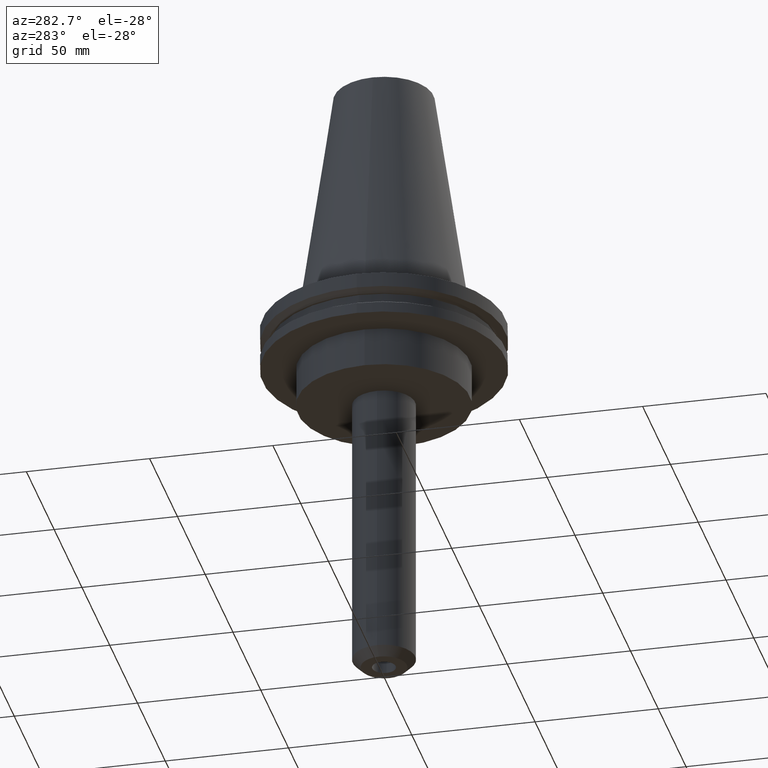
[diagram: clean part render]
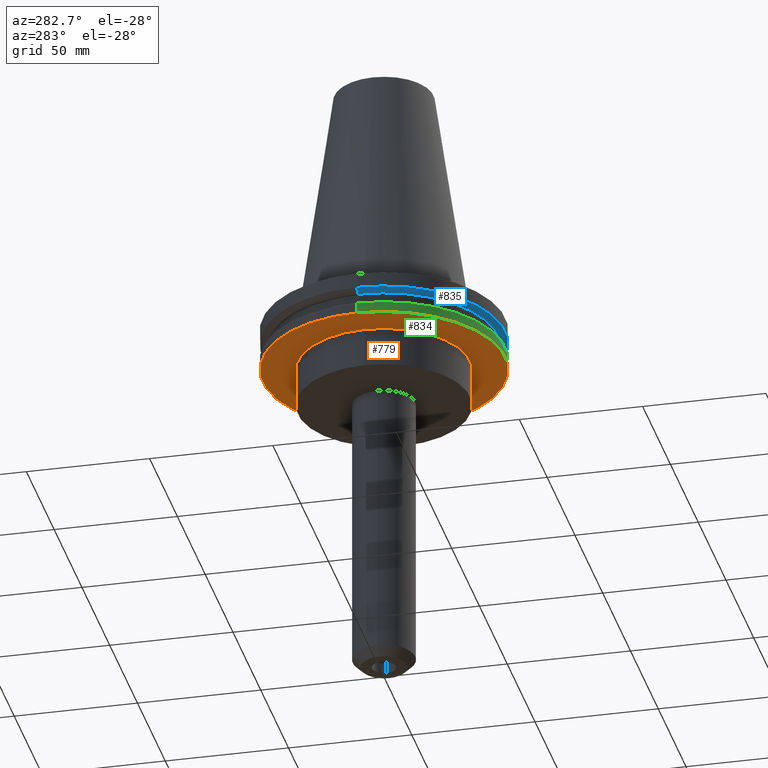
[diagram: same view with three faces highlighted in distinct colors, each labeled with its STEP entity id]
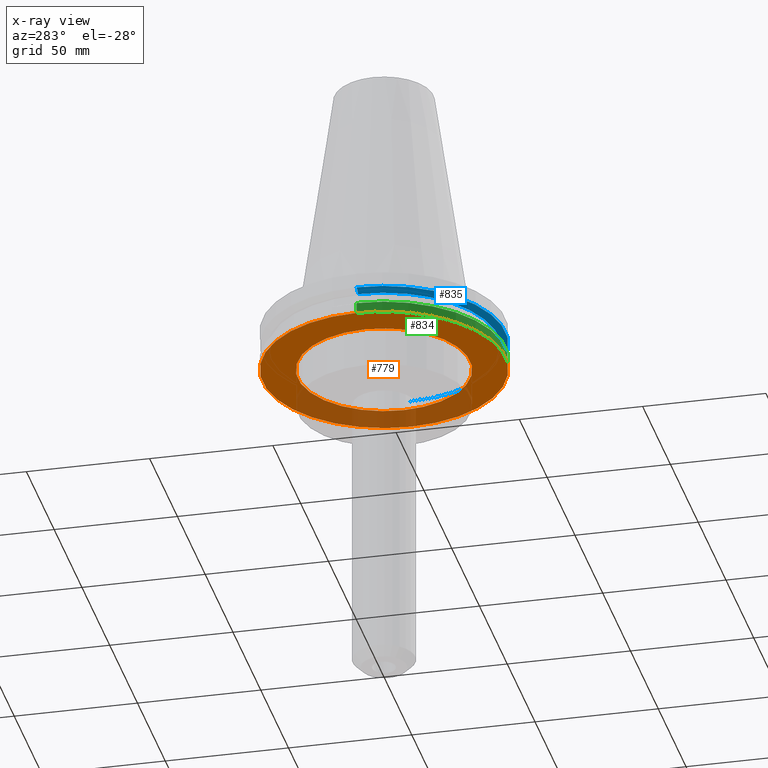
[diagram: x-ray of the same camera — body ghosted, the three highlighted faces saturated]
A machine part, auxiliary view with three faces highlighted in distinct colors.
The next image is the same camera in x-ray (body ghosted, the three faces saturated) — at least one of them is partly hidden behind the body in this view.
Their STEP definitions:

[orange] entity #779 — the highlighted planar face has unit normal (0, -0, 1).
#3 = CARTESIAN_POINT ( 'NONE',  ( -49.21499999999998920, 6.027099222003697037E-15, -19.04999999999999716 ) ) ;
#23 = FACE_OUTER_BOUND ( 'NONE', #534, .T. ) ;
#32 = VERTEX_POINT ( 'NONE', #560 ) ;
#35 = CIRCLE ( 'NONE', #742, 34.92499999999999716 ) ;
#102 = EDGE_CURVE ( 'NONE', #238, #32, #311, .T. ) ;
#111 = DIRECTION ( 'NONE',  ( -0.000000000000000000, -0.000000000000000000, 1.000000000000000000 ) ) ;
#148 = DIRECTION ( 'NONE',  ( 1.000000000000000000, 0.000000000000000000, 0.000000000000000000 ) ) ;
#197 = VERTEX_POINT ( 'NONE', #201 ) ;
#201 = CARTESIAN_POINT ( 'NONE',  ( -34.92499999999999716, 4.277078946022130887E-15, -19.04999999999999716 ) ) ;
#211 = CARTESIAN_POINT ( 'NONE',  ( 0.000000000000000000, 0.000000000000000000, -19.04999999999999716 ) ) ;
#227 = AXIS2_PLACEMENT_3D ( 'NONE', #211, #417, #148 ) ;
#238 = VERTEX_POINT ( 'NONE', #3 ) ;
#242 = CARTESIAN_POINT ( 'NONE',  ( 34.92499999999999716, 0.000000000000000000, -19.04999999999999716 ) ) ;
#263 = DIRECTION ( 'NONE',  ( 1.000000000000000000, 0.000000000000000000, 0.000000000000000000 ) ) ;
#291 = FACE_BOUND ( 'NONE', #821, .T. ) ;
#311 = CIRCLE ( 'NONE', #515, 49.21499999999998920 ) ;
#354 = CIRCLE ( 'NONE', #227, 34.92499999999999716 ) ;
#396 = EDGE_CURVE ( 'NONE', #590, #197, #354, .T. ) ;
#400 = AXIS2_PLACEMENT_3D ( 'NONE', #659, #529, #466 ) ;
#417 = DIRECTION ( 'NONE',  ( -0.000000000000000000, -0.000000000000000000, 1.000000000000000000 ) ) ;
#466 = DIRECTION ( 'NONE',  ( 1.000000000000000000, 0.000000000000000000, 0.000000000000000000 ) ) ;
#486 = ORIENTED_EDGE ( 'NONE', *, *, #696, .T. ) ;
#488 = PLANE ( 'NONE',  #641 ) ;
#515 = AXIS2_PLACEMENT_3D ( 'NONE', #775, #111, #764 ) ;
#529 = DIRECTION ( 'NONE',  ( -0.000000000000000000, -0.000000000000000000, 1.000000000000000000 ) ) ;
#534 = EDGE_LOOP ( 'NONE', ( #608, #636 ) ) ;
#552 = CARTESIAN_POINT ( 'NONE',  ( 0.000000000000000000, 49.21499999999998920, -19.04999999999999716 ) ) ;
#560 = CARTESIAN_POINT ( 'NONE',  ( 49.21499999999998920, 0.000000000000000000, -19.04999999999999716 ) ) ;
#590 = VERTEX_POINT ( 'NONE', #242 ) ;
#608 = ORIENTED_EDGE ( 'NONE', *, *, #675, .F. ) ;
#636 = ORIENTED_EDGE ( 'NONE', *, *, #102, .F. ) ;
#641 = AXIS2_PLACEMENT_3D ( 'NONE', #552, #808, #754 ) ;
#659 = CARTESIAN_POINT ( 'NONE',  ( 0.000000000000000000, 0.000000000000000000, -19.04999999999999716 ) ) ;
#675 = EDGE_CURVE ( 'NONE', #32, #238, #807, .T. ) ;
#696 = EDGE_CURVE ( 'NONE', #197, #590, #35, .T. ) ;
#713 = CARTESIAN_POINT ( 'NONE',  ( 0.000000000000000000, 0.000000000000000000, -19.04999999999999716 ) ) ;
#742 = AXIS2_PLACEMENT_3D ( 'NONE', #713, #854, #263 ) ;
#754 = DIRECTION ( 'NONE',  ( 1.000000000000000000, 0.000000000000000000, 0.000000000000000000 ) ) ;
#764 = DIRECTION ( 'NONE',  ( 1.000000000000000000, 0.000000000000000000, 0.000000000000000000 ) ) ;
#775 = CARTESIAN_POINT ( 'NONE',  ( 0.000000000000000000, 0.000000000000000000, -19.04999999999999716 ) ) ;
#779 = ADVANCED_FACE ( 'NONE', ( #23, #291 ), #488, .F. ) ;
#807 = CIRCLE ( 'NONE', #400, 49.21499999999998920 ) ;
#808 = DIRECTION ( 'NONE',  ( 0.000000000000000000, -0.000000000000000000, 1.000000000000000000 ) ) ;
#821 = EDGE_LOOP ( 'NONE', ( #824, #486 ) ) ;
#824 = ORIENTED_EDGE ( 'NONE', *, *, #396, .T. ) ;
#854 = DIRECTION ( 'NONE',  ( -0.000000000000000000, -0.000000000000000000, 1.000000000000000000 ) ) ;

[blue] entity #835 — the highlighted conical surface has half-angle 60 deg.
#28 = VECTOR ( 'NONE', #33, 1000.000000000000000 ) ;
#33 = DIRECTION ( 'NONE',  ( 0.8660254037844273833, 0.000000000000000000, 0.5000000000000195399 ) ) ;
#57 = CIRCLE ( 'NONE', #787, 49.21500000000000341 ) ;
#67 = ORIENTED_EDGE ( 'NONE', *, *, #298, .F. ) ;
#74 = EDGE_CURVE ( 'NONE', #370, #482, #253, .T. ) ;
#95 = EDGE_LOOP ( 'NONE', ( #278, #673, #447, #67 ) ) ;
#101 = VERTEX_POINT ( 'NONE', #437 ) ;
#141 = CIRCLE ( 'NONE', #267, 46.43919780457007818 ) ;
#165 = VERTEX_POINT ( 'NONE', #431 ) ;
#194 = CONICAL_SURFACE ( 'NONE', #669, 46.43919780457007818, 1.047197551196575205 ) ;
#195 = DIRECTION ( 'NONE',  ( -0.8660254037844273833, 1.060575238724893110E-16, 0.5000000000000195399 ) ) ;
#243 = CARTESIAN_POINT ( 'NONE',  ( 46.43919780457007818, 0.000000000000000000, -9.204999999999991189 ) ) ;
#253 = LINE ( 'NONE', #243, #28 ) ;
#267 = AXIS2_PLACEMENT_3D ( 'NONE', #507, #631, #372 ) ;
#278 = ORIENTED_EDGE ( 'NONE', *, *, #740, .F. ) ;
#298 = EDGE_CURVE ( 'NONE', #101, #482, #57, .T. ) ;
#344 = DIRECTION ( 'NONE',  ( 1.000000000000000000, 0.000000000000000000, 0.000000000000000000 ) ) ;
#345 = CARTESIAN_POINT ( 'NONE',  ( 49.21500000000000341, 0.000000000000000000, -7.602389855251287187 ) ) ;
#347 = FACE_OUTER_BOUND ( 'NONE', #95, .T. ) ;
#370 = VERTEX_POINT ( 'NONE', #745 ) ;
#372 = DIRECTION ( 'NONE',  ( 1.000000000000000000, 0.000000000000000000, 0.000000000000000000 ) ) ;
#387 = DIRECTION ( 'NONE',  ( -0.000000000000000000, -0.000000000000000000, 1.000000000000000000 ) ) ;
#431 = CARTESIAN_POINT ( 'NONE',  ( -46.43919780457007818, 5.857130358318727293E-15, -9.204999999999991189 ) ) ;
#437 = CARTESIAN_POINT ( 'NONE',  ( -49.21500000000000341, 6.027099222003699404E-15, -7.602389855251287187 ) ) ;
#447 = ORIENTED_EDGE ( 'NONE', *, *, #74, .T. ) ;
#463 = DIRECTION ( 'NONE',  ( 1.000000000000000000, 0.000000000000000000, 0.000000000000000000 ) ) ;
#480 = VECTOR ( 'NONE', #195, 1000.000000000000000 ) ;
#482 = VERTEX_POINT ( 'NONE', #345 ) ;
#507 = CARTESIAN_POINT ( 'NONE',  ( 0.000000000000000000, 0.000000000000000000, -9.204999999999991189 ) ) ;
#510 = EDGE_CURVE ( 'NONE', #165, #370, #141, .T. ) ;
#522 = LINE ( 'NONE', #652, #480 ) ;
#606 = CARTESIAN_POINT ( 'NONE',  ( 0.000000000000000000, 0.000000000000000000, -9.204999999999991189 ) ) ;
#631 = DIRECTION ( 'NONE',  ( -0.000000000000000000, -0.000000000000000000, 1.000000000000000000 ) ) ;
#652 = CARTESIAN_POINT ( 'NONE',  ( -46.43919780457007818, 5.687161494633754392E-15, -9.204999999999991189 ) ) ;
#669 = AXIS2_PLACEMENT_3D ( 'NONE', #606, #674, #344 ) ;
#673 = ORIENTED_EDGE ( 'NONE', *, *, #510, .T. ) ;
#674 = DIRECTION ( 'NONE',  ( -0.000000000000000000, -0.000000000000000000, 1.000000000000000000 ) ) ;
#740 = EDGE_CURVE ( 'NONE', #165, #101, #522, .T. ) ;
#745 = CARTESIAN_POINT ( 'NONE',  ( 46.43919780457007818, 0.000000000000000000, -9.204999999999991189 ) ) ;
#787 = AXIS2_PLACEMENT_3D ( 'NONE', #842, #387, #463 ) ;
#835 = ADVANCED_FACE ( 'NONE', ( #347 ), #194, .T. ) ;
#842 = CARTESIAN_POINT ( 'NONE',  ( 0.000000000000000000, 0.000000000000000000, -7.602389855251287187 ) ) ;

[green] entity #834 — the highlighted cylindrical surface (partial cylindrical patch) has radius 49.215 mm, axis along (-0, -0, 1).
#3 = CARTESIAN_POINT ( 'NONE',  ( -49.21499999999998920, 6.027099222003697037E-15, -19.04999999999999716 ) ) ;
#21 = AXIS2_PLACEMENT_3D ( 'NONE', #680, #406, #666 ) ;
#32 = VERTEX_POINT ( 'NONE', #560 ) ;
#38 = DIRECTION ( 'NONE',  ( 1.000000000000000000, 0.000000000000000000, 0.000000000000000000 ) ) ;
#63 = VERTEX_POINT ( 'NONE', #317 ) ;
#90 = LINE ( 'NONE', #607, #765 ) ;
#102 = EDGE_CURVE ( 'NONE', #238, #32, #311, .T. ) ;
#111 = DIRECTION ( 'NONE',  ( -0.000000000000000000, -0.000000000000000000, 1.000000000000000000 ) ) ;
#134 = EDGE_CURVE ( 'NONE', #445, #63, #212, .T. ) ;
#158 = LINE ( 'NONE', #162, #405 ) ;
#162 = CARTESIAN_POINT ( 'NONE',  ( -49.21499999999998920, 6.027099222003697037E-15, 101.5999999999999943 ) ) ;
#212 = CIRCLE ( 'NONE', #692, 49.21499999999998920 ) ;
#238 = VERTEX_POINT ( 'NONE', #3 ) ;
#246 = ORIENTED_EDGE ( 'NONE', *, *, #385, .T. ) ;
#311 = CIRCLE ( 'NONE', #515, 49.21499999999998920 ) ;
#317 = CARTESIAN_POINT ( 'NONE',  ( 49.21499999999998920, 0.000000000000000000, -14.65761014474876944 ) ) ;
#322 = CARTESIAN_POINT ( 'NONE',  ( 0.000000000000000000, 0.000000000000000000, -14.65761014474876944 ) ) ;
#351 = EDGE_CURVE ( 'NONE', #238, #445, #158, .T. ) ;
#361 = DIRECTION ( 'NONE',  ( -0.000000000000000000, -0.000000000000000000, 1.000000000000000000 ) ) ;
#385 = EDGE_CURVE ( 'NONE', #32, #63, #90, .T. ) ;
#405 = VECTOR ( 'NONE', #602, 1000.000000000000000 ) ;
#406 = DIRECTION ( 'NONE',  ( -0.000000000000000000, -0.000000000000000000, 1.000000000000000000 ) ) ;
#415 = ORIENTED_EDGE ( 'NONE', *, *, #102, .T. ) ;
#418 = ORIENTED_EDGE ( 'NONE', *, *, #134, .F. ) ;
#445 = VERTEX_POINT ( 'NONE', #484 ) ;
#479 = FACE_OUTER_BOUND ( 'NONE', #625, .T. ) ;
#484 = CARTESIAN_POINT ( 'NONE',  ( -49.21499999999998920, 6.027099222003697037E-15, -14.65761014474876944 ) ) ;
#515 = AXIS2_PLACEMENT_3D ( 'NONE', #775, #111, #764 ) ;
#560 = CARTESIAN_POINT ( 'NONE',  ( 49.21499999999998920, 0.000000000000000000, -19.04999999999999716 ) ) ;
#602 = DIRECTION ( 'NONE',  ( -0.000000000000000000, -0.000000000000000000, 1.000000000000000000 ) ) ;
#607 = CARTESIAN_POINT ( 'NONE',  ( 49.21499999999998920, 0.000000000000000000, 101.5999999999999943 ) ) ;
#624 = DIRECTION ( 'NONE',  ( -0.000000000000000000, -0.000000000000000000, 1.000000000000000000 ) ) ;
#625 = EDGE_LOOP ( 'NONE', ( #803, #415, #246, #418 ) ) ;
#666 = DIRECTION ( 'NONE',  ( 1.000000000000000000, 0.000000000000000000, 0.000000000000000000 ) ) ;
#680 = CARTESIAN_POINT ( 'NONE',  ( 0.000000000000000000, 0.000000000000000000, 101.5999999999999943 ) ) ;
#692 = AXIS2_PLACEMENT_3D ( 'NONE', #322, #624, #38 ) ;
#764 = DIRECTION ( 'NONE',  ( 1.000000000000000000, 0.000000000000000000, 0.000000000000000000 ) ) ;
#765 = VECTOR ( 'NONE', #361, 1000.000000000000000 ) ;
#775 = CARTESIAN_POINT ( 'NONE',  ( 0.000000000000000000, 0.000000000000000000, -19.04999999999999716 ) ) ;
#798 = CYLINDRICAL_SURFACE ( 'NONE', #21, 49.21499999999998920 ) ;
#803 = ORIENTED_EDGE ( 'NONE', *, *, #351, .F. ) ;
#834 = ADVANCED_FACE ( 'NONE', ( #479 ), #798, .T. ) ;